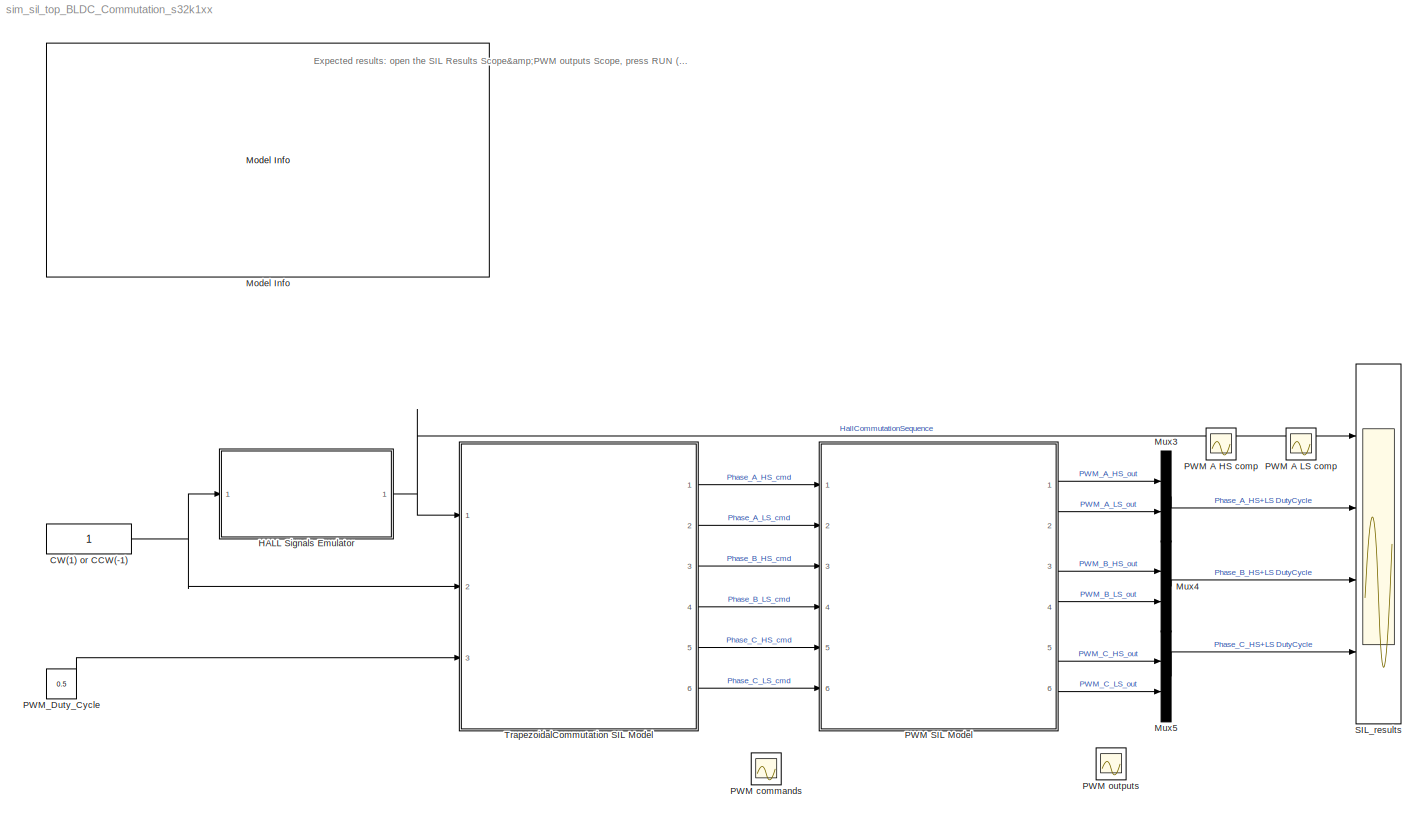
MODEL sim_sil_top_BLDC_Commutation_s32k1xx
KIND model
CONFIG InitFcn = mbd_s32k_consistency_checks(bdroot(gcs));
BLOCK [Constant] CW(1) or CCW(-1)
  OutDataTypeStr = single
  OutMax = 1
  OutMin = -1
  SID = 20
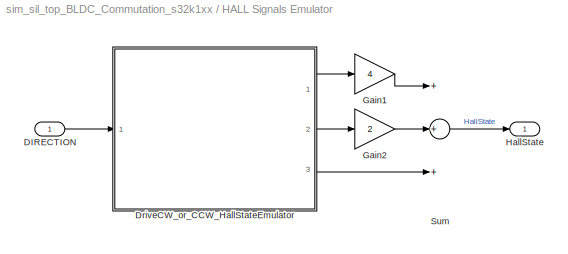
BLOCK [SubSystem] HALL Signals Emulator
  Ports = [1, 1]
  RequestExecContextInheritance = off
  SID = 21
  Variant = off
BLOCK [Inport] HALL Signals Emulator/DIRECTION
  IconDisplay = Port number
  SID = 22
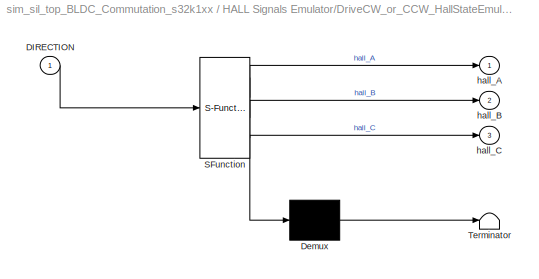
BLOCK [SubSystem] HALL Signals Emulator/DriveCW_or_CCW_HallStateEmulator
  ErrorFcn = Stateflow.Translate.translate
  PermitHierarchicalResolution = ExplicitOnly
  Ports = [1, 3]
  RequestExecContextInheritance = off
  SFBlockType = Chart
  SID = 23
  TreatAsAtomicUnit = on
  Variant = off
BLOCK [Demux] HALL Signals Emulator/DriveCW_or_CCW_HallStateEmulator/ Demux 
  Outputs = 1
  Ports = [1, 1]
  SID = 23::95
BLOCK [S-Function] HALL Signals Emulator/DriveCW_or_CCW_HallStateEmulator/ SFunction 
  EnableBusSupport = off
  FunctionName = sf_sfun
  PortCounts = [1 4]
  Ports = [1, 4]
  SFcnIsStateOwnerBlock = off
  SFunctionDeploymentMode = off
  SID = 23::94
  Tag = Stateflow S-Function sim_sil_top_BLDC_Commutation_s32k1xx 5
BLOCK [Terminator] HALL Signals Emulator/DriveCW_or_CCW_HallStateEmulator/ Terminator 
  SID = 23::96
BLOCK [Inport] HALL Signals Emulator/DriveCW_or_CCW_HallStateEmulator/DIRECTION
  IconDisplay = Port number
  SID = 23::84
BLOCK [Outport] HALL Signals Emulator/DriveCW_or_CCW_HallStateEmulator/hall_A
  IconDisplay = Port number
  SID = 23::81
BLOCK [Outport] HALL Signals Emulator/DriveCW_or_CCW_HallStateEmulator/hall_B
  IconDisplay = Port number
  Port = 2
  SID = 23::82
BLOCK [Outport] HALL Signals Emulator/DriveCW_or_CCW_HallStateEmulator/hall_C
  IconDisplay = Port number
  Port = 3
  SID = 23::83
BLOCK [Gain] HALL Signals Emulator/Gain1
  Gain = 4
  OutDataTypeStr = uint8
  SID = 24
  SaturateOnIntegerOverflow = off
BLOCK [Gain] HALL Signals Emulator/Gain2
  Gain = 2
  OutDataTypeStr = uint8
  SID = 25
  SaturateOnIntegerOverflow = off
BLOCK [Outport] HALL Signals Emulator/HallState
  IconDisplay = Port number
  SID = 27
BLOCK [Sum] HALL Signals Emulator/Sum
  AccumDataTypeStr = uint8
  InputSameDT = off
  Inputs = +++
  OutDataTypeStr = uint8
  Ports = [3, 1]
  SID = 26
  SaturateOnIntegerOverflow = off
BLOCK [Reference] Model Info  REF=simulink/Model-Wide\nUtilities/Model Info
  DisplayStringWithTags = Model Name: %<ModelName>\n\nDescription: %<Description>
  Frame = off
  HorizontalTextAlignment = Left
  LeftAlignmentValue = 0.02
  MaskDisplayString = Model Name: sim_sil_top_BLDC_Commutation_s32k1xx\\n\\nDescription: This model validates the PWM commands based on emulated HALL states\\n\\nInputs:\\n- Rotation DIRECTION [CW(1) or CCW(-1)] can be set to 1(clockwise) or -1(counter clockwise).\\n- PWM duty cycle [PWM_Duty_Cycle] can be set to any value between 0-1.\\n\\nOutputs:\\nBased on DIRECTION the comuttation sequence for each phase is update...<+595ch>
  Ports = []
  SID = 47
  SourceBlock = simulink/Model-Wide\nUtilities/Model Info
  SourceProductBaseCode = SL
  SourceProductName = Simulink
  SourceType = CMBlock
BLOCK [Mux] Mux3
  DisplayOption = bar
  Inputs = 2
  Ports = [2, 1]
  SID = 36
BLOCK [Mux] Mux4
  DisplayOption = bar
  Inputs = 2
  Ports = [2, 1]
  SID = 37
BLOCK [Mux] Mux5
  DisplayOption = bar
  Inputs = 2
  Ports = [2, 1]
  SID = 38
BLOCK [Scope] PWM A HS comp
  Floating = on
  NumInputPorts = 1
  Ports = []
  SID = 43
  ScopeSpecificationString = Simulink.scopes.TimeScopeBlockCfg('CurrentConfiguration', extmgr.ConfigurationSet(extmgr.Configuration('Core','General UI',true),extmgr.Configuration('Core','Source UI',true),extmgr.Configuration('Sources','WiredSimulink',true,'DataLoggingVariableName','ScopeData3'),extmgr.Configuration('Visuals','Time Domain',true,'SerializedDisplays',{struct('MinYLimReal','-0.125','MaxYLimReal','1.125','YLabelRe...<+2182ch>
BLOCK [Scope] PWM A LS comp
  Floating = on
  NumInputPorts = 1
  Ports = []
  SID = 45
  ScopeSpecificationString = Simulink.scopes.TimeScopeBlockCfg('CurrentConfiguration', extmgr.ConfigurationSet(extmgr.Configuration('Core','General UI',true),extmgr.Configuration('Core','Source UI',true),extmgr.Configuration('Sources','WiredSimulink',true,'DataLoggingVariableName','ScopeData4'),extmgr.Configuration('Visuals','Time Domain',true,'SerializedDisplays',{struct('MinYLimReal','-0.0625','MaxYLimReal','0.5625','YLabel...<+2167ch>
BLOCK [ModelReference] PWM SIL Model
  ModelNameDialog = sim_sil_target_PWM_s32k1xx.mdl
  ModelReferenceVersion = 1.86
  Ports = [6, 6]
  SID = 35
  Variant = off
BLOCK [Scope] PWM commands
  Floating = on
  NumInputPorts = 1
  Ports = []
  SID = 50
  ScopeSpecificationString = Simulink.scopes.TimeScopeBlockCfg('CurrentConfiguration', extmgr.ConfigurationSet(extmgr.Configuration('Core','General UI',true),extmgr.Configuration('Core','Source UI',true),extmgr.Configuration('Sources','WiredSimulink',true,'DataLoggingVariableName','ScopeData3'),extmgr.Configuration('Visuals','Time Domain',true,'SerializedDisplays',{struct('MinYLimReal','-0.125','MaxYLimReal','1.125','YLabelRe...<+2028ch>
BLOCK [Scope] PWM outputs
  Floating = on
  NumInputPorts = 1
  Ports = []
  SID = 49
  ScopeSpecificationString = Simulink.scopes.TimeScopeBlockCfg('CurrentConfiguration', extmgr.ConfigurationSet(extmgr.Configuration('Core','General UI',true),extmgr.Configuration('Core','Source UI',true),extmgr.Configuration('Sources','WiredSimulink',true,'DataLoggingVariableName','ScopeData2'),extmgr.Configuration('Visuals','Time Domain',true,'SerializedDisplays',{struct('MinYLimReal','-0.125','MaxYLimReal','1.125','YLabelRe...<+2054ch>
BLOCK [Constant] PWM_Duty_Cycle
  OutDataTypeStr = single
  OutMax = 100
  OutMin = 0
  SID = 31
  Value = 0.5
BLOCK [Scope] SIL_results
  NumInputPorts = 4
  Ports = [4]
  SID = 48
  ScopeSpecificationString = Simulink.scopes.TimeScopeBlockCfg('CurrentConfiguration', extmgr.ConfigurationSet(extmgr.Configuration('Core','General UI',true),extmgr.Configuration('Core','Source UI',true),extmgr.Configuration('Sources','WiredSimulink',true,'DataLoggingVariableName','ScopeData1'),extmgr.Configuration('Visuals','Time Domain',true,'SerializedDisplays',{struct('MinYLimReal','0.375','MaxYLimReal','6.625','YLabelRea...<+4190ch>
BLOCK [ModelReference] TrapezoidalCommutation SIL Model
  ModelNameDialog = sim_sil_target_TrapezoidalCommutation_s32k1xx.mdl
  ModelReferenceVersion = 1.92
  Ports = [3, 6]
  SID = 33
  Variant = off
ANNOTATION (root): \n \n Expected results: open the SIL Results Scope&PWM outputs Scope, press RUN (CTRL+T) to run the model and check if the signals are the same with these ones \n \n
NET CW(1) or CCW(-1):1 -> HALL Signals Emulator:1, TrapezoidalCommutation SIL Model:2
LINE HALL Signals Emulator/DIRECTION:1 -> HALL Signals Emulator/DriveCW_or_CCW_HallStateEmulator:1
LINE HALL Signals Emulator/DriveCW_or_CCW_HallStateEmulator/ Demux :1 -> HALL Signals Emulator/DriveCW_or_CCW_HallStateEmulator/ Terminator :1
LINE HALL Signals Emulator/DriveCW_or_CCW_HallStateEmulator/ SFunction :1 -> HALL Signals Emulator/DriveCW_or_CCW_HallStateEmulator/ Demux :1
LINE HALL Signals Emulator/DriveCW_or_CCW_HallStateEmulator/ SFunction :2 -> HALL Signals Emulator/DriveCW_or_CCW_HallStateEmulator/hall_A:1
LINE HALL Signals Emulator/DriveCW_or_CCW_HallStateEmulator/ SFunction :3 -> HALL Signals Emulator/DriveCW_or_CCW_HallStateEmulator/hall_B:1
LINE HALL Signals Emulator/DriveCW_or_CCW_HallStateEmulator/ SFunction :4 -> HALL Signals Emulator/DriveCW_or_CCW_HallStateEmulator/hall_C:1
LINE HALL Signals Emulator/DriveCW_or_CCW_HallStateEmulator/DIRECTION:1 -> HALL Signals Emulator/DriveCW_or_CCW_HallStateEmulator/ SFunction :1
LINE HALL Signals Emulator/DriveCW_or_CCW_HallStateEmulator:1 -> HALL Signals Emulator/Gain1:1
LINE HALL Signals Emulator/DriveCW_or_CCW_HallStateEmulator:2 -> HALL Signals Emulator/Gain2:1
LINE HALL Signals Emulator/DriveCW_or_CCW_HallStateEmulator:3 -> HALL Signals Emulator/Sum:3
LINE HALL Signals Emulator/Gain1:1 -> HALL Signals Emulator/Sum:1
LINE HALL Signals Emulator/Gain2:1 -> HALL Signals Emulator/Sum:2
LINE HALL Signals Emulator/Sum:1 -> HALL Signals Emulator/HallState:1
NET HALL Signals Emulator:1 -> SIL_results:1, TrapezoidalCommutation SIL Model:1
LINE Mux3:1 -> SIL_results:2
LINE Mux4:1 -> SIL_results:3
LINE Mux5:1 -> SIL_results:4
LINE PWM SIL Model:1 -> Mux3:1
LINE PWM SIL Model:2 -> Mux3:2
LINE PWM SIL Model:3 -> Mux4:1
LINE PWM SIL Model:4 -> Mux4:2
LINE PWM SIL Model:5 -> Mux5:1
LINE PWM SIL Model:6 -> Mux5:2
LINE PWM_Duty_Cycle:1 -> TrapezoidalCommutation SIL Model:3
LINE TrapezoidalCommutation SIL Model:1 -> PWM SIL Model:1
LINE TrapezoidalCommutation SIL Model:2 -> PWM SIL Model:2
LINE TrapezoidalCommutation SIL Model:3 -> PWM SIL Model:3
LINE TrapezoidalCommutation SIL Model:4 -> PWM SIL Model:4
LINE TrapezoidalCommutation SIL Model:5 -> PWM SIL Model:5
LINE TrapezoidalCommutation SIL Model:6 -> PWM SIL Model:6
note: NET lines group one-source signal fan-out (src -> all destinations, sorted); 1:1 wires keep LINE
CHART HALL Signals Emulator/DriveCW_or_CCW_HallStateEmulator states=11 transitions=13
  STATE_LABEL 'STEP1\\nentry:\\nhall_A = uint8(1);\\nhall_B = uint8(0);\\nhall_C = uint8(0);\\n'
  STATE_LABEL 'STEP2_CCW\\nentry:\\nhall_A = uint8(1);\\nhall_B = uint8(0);\\nhall_C = uint8(1);\\n'
  STATE_LABEL 'STEP2_CW\\nentry:\\nhall_A = uint8(1);\\nhall_B = uint8(1);\\nhall_C = uint8(0);\\n'
  STATE_LABEL 'STEP3_CCW\\nentry:\\nhall_A = uint8(0);\\nhall_B = uint8(0);\\nhall_C = uint8(1);\\n'
  STATE_LABEL 'STEP3\\nentry:\\nhall_A = uint8(0);\\nhall_B = uint8(1);\\nhall_C = uint8(0);\\n'
  STATE_LABEL 'STEP4_CCW\\nentry:\\nhall_A = uint8(0);\\nhall_B = uint8(1);\\nhall_C = uint8(1);\\n'
  STATE_LABEL 'STEP4\\nentry:\\nhall_A = uint8(0);\\nhall_B = uint8(1);\\nhall_C = uint8(1);\\n'
  STATE_LABEL 'STEP5_CCW\\nentry:\\nhall_A = uint8(0);\\nhall_B = uint8(1);\\nhall_C = uint8(0);\\n'
  STATE_LABEL 'STEP5\\nentry:\\nhall_A = uint8(0);\\nhall_B = uint8(0);\\nhall_C = uint8(1);\\n'
  STATE_LABEL 'STEP6_CCW\\nentry:\\nhall_A = uint8(1);\\nhall_B = uint8(1);\\nhall_C = uint8(0);\\n'
  STATE_LABEL 'STEP6\\nentry:\\nhall_A = uint8(1);\\nhall_B = uint8(0);\\nhall_C = uint8(1);\\n'
